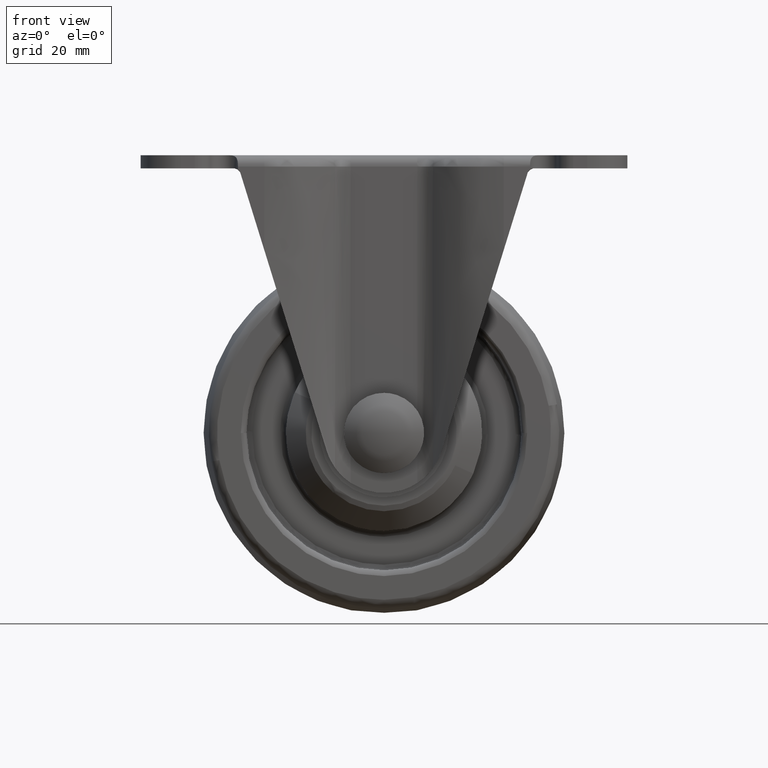
[diagram: clean part render]
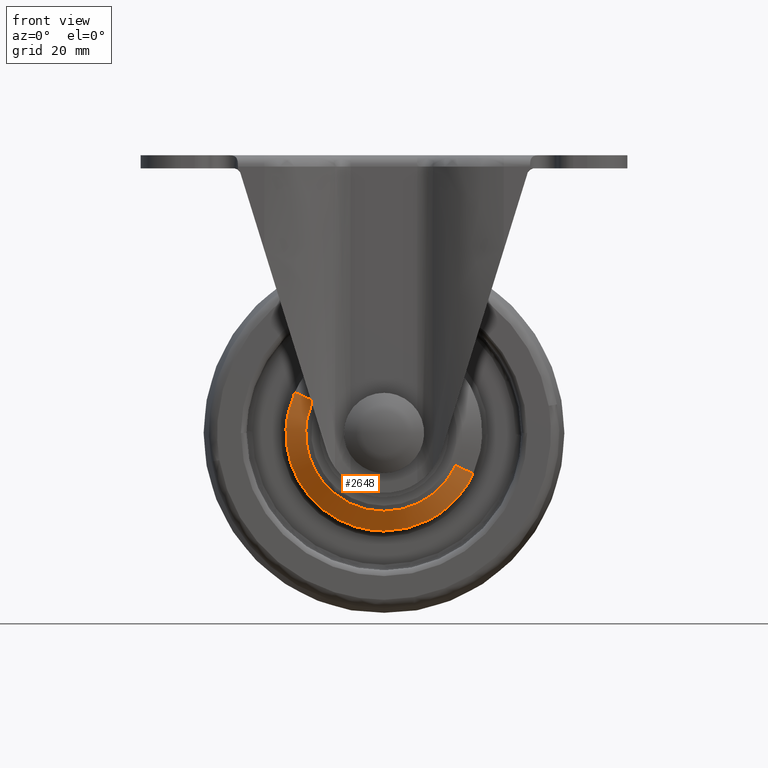
[diagram: same view with one face highlighted and labeled with its STEP entity id]
A machine part, front view. The second image highlights one B-rep face of the part: STEP entity #2648.
In plain terms, the highlighted face is a freeform B-spline surface patch.
Its self-contained STEP definition (entity closure, byte-faithful):
#2430=CARTESIAN_POINT('',(11.568263357546609,-11.499999999989390,-12.624546690046770));
#2431=VERTEX_POINT('',#2430);
#2432=CARTESIAN_POINT('',(15.581447923434380,-11.499999999983920,-7.100873026817055));
#2433=VERTEX_POINT('',#2432);
#2434=CARTESIAN_POINT('',(11.568263357546609,-11.499999999989390,-12.624546690046765));
#2435=CARTESIAN_POINT('',(14.136757946231617,-11.499999999986434,-10.270955855283503));
#2436=CARTESIAN_POINT('',(15.581447923434391,-11.499999999983920,-7.100873026817055));
#2444=(BOUNDED_CURVE()B_SPLINE_CURVE(2,(#2434,#2435,#2436),.UNSPECIFIED.,.F.,.U.)B_SPLINE_CURVE_WITH_KNOTS((3,3),(0.118415182658635,0.179570116082448),.UNSPECIFIED.)CURVE()GEOMETRIC_REPRESENTATION_ITEM()RATIONAL_B_SPLINE_CURVE((0.853959784099733,0.850185500540606,0.881463982732632))REPRESENTATION_ITEM(''));
#2445=EDGE_CURVE('',#2431,#2433,#2444,.T.);
#2513=CARTESIAN_POINT('',(0.0,-11.500000000000000,-17.123197108642589));
#2514=VERTEX_POINT('',#2513);
#2515=CARTESIAN_POINT('',(0.0,-11.500000000000000,-17.123197108642589));
#2516=CARTESIAN_POINT('',(6.658846187046456,-11.499999999995113,-17.123197108642771));
#2517=CARTESIAN_POINT('',(11.568263357546613,-11.499999999989388,-12.624546690046776));
#2525=(BOUNDED_CURVE()B_SPLINE_CURVE(2,(#2515,#2516,#2517),.UNSPECIFIED.,.F.,.U.)B_SPLINE_CURVE_WITH_KNOTS((3,3),(0.0,0.118415182658635),.UNSPECIFIED.)CURVE()GEOMETRIC_REPRESENTATION_ITEM()RATIONAL_B_SPLINE_CURVE((1.0,0.861267983978918,0.853959784099733))REPRESENTATION_ITEM(''));
#2526=EDGE_CURVE('',#2514,#2431,#2525,.T.);
#2528=CARTESIAN_POINT('',(-15.581447923434380,-11.499999999983920,7.100876809531911));
#2529=VERTEX_POINT('',#2528);
#2530=CARTESIAN_POINT('',(-15.581447923434380,-11.499999999983922,7.100876809531911));
#2531=CARTESIAN_POINT('',(-17.123199000016218,-11.499999999985038,3.717812836781697));
#2532=CARTESIAN_POINT('',(-17.123199000014321,-11.499999999986780,0.000001891363944));
#2533=CARTESIAN_POINT('',(-17.123199000005599,-11.499999999994827,-17.123197108640031));
#2534=CARTESIAN_POINT('',(0.0,-11.500000000000000,-17.123197108642589));
#2542=(BOUNDED_CURVE()B_SPLINE_CURVE(2,(#2530,#2531,#2532,#2533,#2534),.UNSPECIFIED.,.F.,.U.)B_SPLINE_CURVE_WITH_KNOTS((3,2,3),(0.679570116082448,0.750000000000000,1.0),.UNSPECIFIED.)CURVE()GEOMETRIC_REPRESENTATION_ITEM()RATIONAL_B_SPLINE_CURVE((0.881463982732631,0.917486258394921,1.0,0.707106781186548,1.0))REPRESENTATION_ITEM(''));
#2543=EDGE_CURVE('',#2529,#2514,#2542,.T.);
#2566=CARTESIAN_POINT('',(12.358959395377701,-14.471543333414820,-5.632300396177321));
#2567=CARTESIAN_POINT('',(6.726657107842960,-14.471543333414829,-17.991259791555024));
#2568=CARTESIAN_POINT('',(-5.632302287534738,-14.471543333414820,-12.358957504020280));
#2569=CARTESIAN_POINT('',(-17.991261682912434,-14.471543333414829,-6.726655216485540));
#2570=CARTESIAN_POINT('',(-12.358959395377701,-14.471543333414820,5.632304178892163));
#2571=CARTESIAN_POINT('',(15.662010136715301,-11.425711416664630,-7.137587342361229));
#2572=CARTESIAN_POINT('',(8.524420902996646,-11.425711416664628,-22.799597479076532));
#2573=CARTESIAN_POINT('',(-7.137589233718650,-11.425711416664630,-15.662008245357880));
#2574=CARTESIAN_POINT('',(-22.799599370433938,-11.425711416664628,-8.524419011639225));
#2575=CARTESIAN_POINT('',(-15.662010136715301,-11.425711416664630,7.137591125076071));
#2583=(BOUNDED_SURFACE()B_SPLINE_SURFACE(2,1,((#2566,#2571),(#2567,#2572),(#2568,#2573),(#2569,#2574),(#2570,#2575)),.UNSPECIFIED.,.F.,.F.,.U.)B_SPLINE_SURFACE_WITH_KNOTS((3,2,3),(2,2),(0.0,28.517332419667500,57.034664839334987),(0.0,4.738472861091083),.UNSPECIFIED.)GEOMETRIC_REPRESENTATION_ITEM()RATIONAL_B_SPLINE_SURFACE(((1.0,1.0),(0.707106781186548,0.707106781186548),(1.0,1.0),(0.707106781186548,0.707106781186548),(1.0,1.0)))REPRESENTATION_ITEM('')SURFACE());
#2584=CARTESIAN_POINT('',(0.0,-14.399066664678490,-13.668224523172460));
#2585=VERTEX_POINT('',#2584);
#2586=CARTESIAN_POINT('',(12.437556678307571,-14.399066665415839,-5.668119241785419));
#2587=VERTEX_POINT('',#2586);
#2588=CARTESIAN_POINT('',(0.0,-14.399066664678490,-13.668224523172460));
#2589=CARTESIAN_POINT('',(8.791698655472644,-14.399066664816051,-13.668224523361555));
#2590=CARTESIAN_POINT('',(12.437556678307574,-14.399066665415834,-5.668119241785419));
#2598=(BOUNDED_CURVE()B_SPLINE_CURVE(2,(#2588,#2589,#2590),.UNSPECIFIED.,.F.,.U.)B_SPLINE_CURVE_WITH_KNOTS((3,3),(0.0,0.179570116095262),.UNSPECIFIED.)CURVE()GEOMETRIC_REPRESENTATION_ITEM()RATIONAL_B_SPLINE_CURVE((1.0,0.789620522776614,0.881463982745739))REPRESENTATION_ITEM(''));
#2599=EDGE_CURVE('',#2585,#2587,#2598,.T.);
#2600=ORIENTED_EDGE('',*,*,#2599,.F.);
#2601=CARTESIAN_POINT('',(-8.844107384059598,-14.399066666746171,-10.421234975287261));
#2602=VERTEX_POINT('',#2601);
#2603=CARTESIAN_POINT('',(-8.844107384059598,-14.399066666746165,-10.421234975287263));
#2604=CARTESIAN_POINT('',(-5.018096947281130,-14.399066665712331,-13.668224522233089));
#2605=CARTESIAN_POINT('',(0.0,-14.399066664678490,-13.668224523172460));
#2613=(BOUNDED_CURVE()B_SPLINE_CURVE(2,(#2603,#2604,#2605),.UNSPECIFIED.,.F.,.U.)B_SPLINE_CURVE_WITH_KNOTS((3,3),(0.887331629833050,1.0),.UNSPECIFIED.)CURVE()GEOMETRIC_REPRESENTATION_ITEM()RATIONAL_B_SPLINE_CURVE((0.854978670802013,0.868000793613345,1.0))REPRESENTATION_ITEM(''));
#2614=EDGE_CURVE('',#2602,#2585,#2613,.T.);
#2615=ORIENTED_EDGE('',*,*,#2614,.F.);
#2616=CARTESIAN_POINT('',(-12.437556678307571,-14.399066665415850,5.668123024500261));
#2617=VERTEX_POINT('',#2616);
#2618=CARTESIAN_POINT('',(-12.437556678307573,-14.399066665415843,5.668123024500261));
#2619=CARTESIAN_POINT('',(-13.668226413490018,-14.399066665684886,2.967664754811637));
#2620=CARTESIAN_POINT('',(-13.668226413342170,-14.399066665946799,0.000001892597098));
#2621=CARTESIAN_POINT('',(-13.668226413026945,-14.399066666505210,-6.327188628490475));
#2622=CARTESIAN_POINT('',(-8.844107384059598,-14.399066666746165,-10.421234975287263));
#2630=(BOUNDED_CURVE()B_SPLINE_CURVE(2,(#2618,#2619,#2620,#2621,#2622),.UNSPECIFIED.,.F.,.U.)B_SPLINE_CURVE_WITH_KNOTS((3,2,3),(0.679570116095262,0.750000000000000,0.887331629833050),.UNSPECIFIED.)CURVE()GEOMETRIC_REPRESENTATION_ITEM()RATIONAL_B_SPLINE_CURVE((0.881463982745739,0.917486258409934,1.0,0.839105987573202,0.854978670802013))REPRESENTATION_ITEM(''));
#2631=EDGE_CURVE('',#2617,#2602,#2630,.T.);
#2632=ORIENTED_EDGE('',*,*,#2631,.F.);
#2633=CARTESIAN_POINT('',(-12.437556678307571,-14.399066665415850,5.668123024500261));
#2634=CARTESIAN_POINT('',(-15.581447923434380,-11.499999999983920,7.100876809531911));
#2635=QUASI_UNIFORM_CURVE('',1,(#2633,#2634),.UNSPECIFIED.,.F.,.U.);
#2636=EDGE_CURVE('',#2617,#2529,#2635,.T.);
#2637=ORIENTED_EDGE('',*,*,#2636,.T.);
#2638=ORIENTED_EDGE('',*,*,#2543,.T.);
#2639=ORIENTED_EDGE('',*,*,#2526,.T.);
#2640=ORIENTED_EDGE('',*,*,#2445,.T.);
#2641=CARTESIAN_POINT('',(12.437556678307571,-14.399066665415839,-5.668119241785419));
#2642=CARTESIAN_POINT('',(15.581447923434380,-11.499999999983920,-7.100873026817055));
#2643=QUASI_UNIFORM_CURVE('',1,(#2641,#2642),.UNSPECIFIED.,.F.,.U.);
#2644=EDGE_CURVE('',#2587,#2433,#2643,.T.);
#2645=ORIENTED_EDGE('',*,*,#2644,.F.);
#2646=EDGE_LOOP('',(#2600,#2615,#2632,#2637,#2638,#2639,#2640,#2645));
#2647=FACE_OUTER_BOUND('',#2646,.T.);
#2648=ADVANCED_FACE('',(#2647),#2583,.T.);